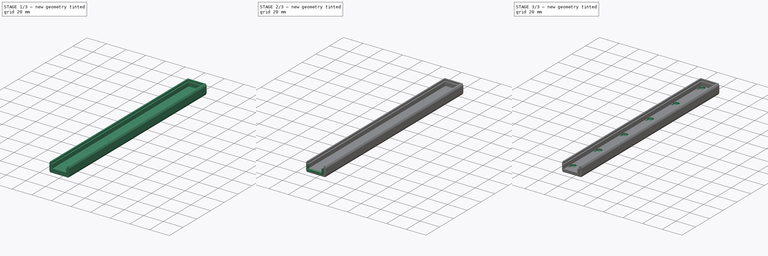
[diagram: build sequence overview — one tinted view per stage of 3, left to right]
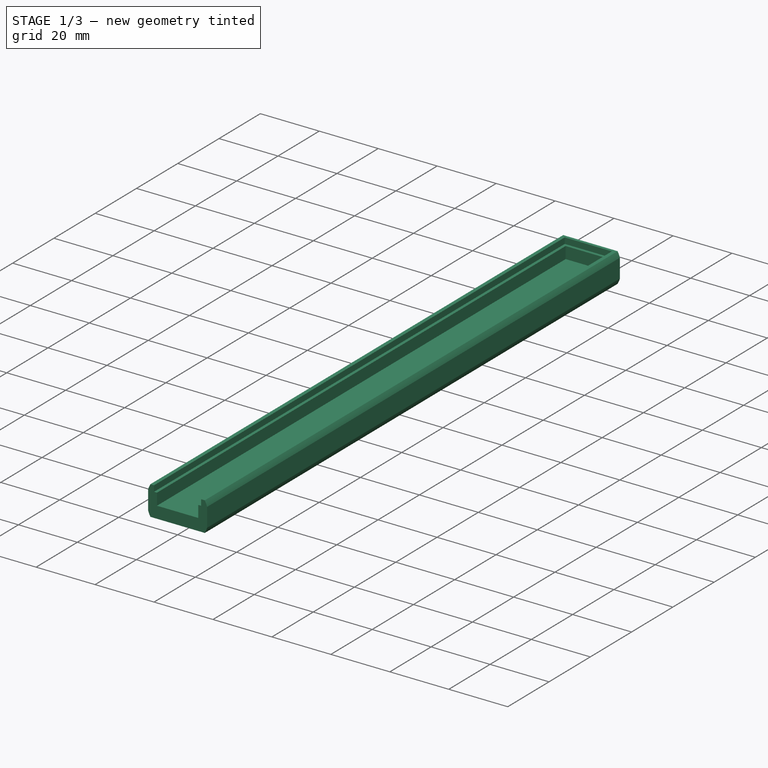
[diagram: stage 1 of 3 — iso view after this stage's code; geometry added in this stage tinted green]
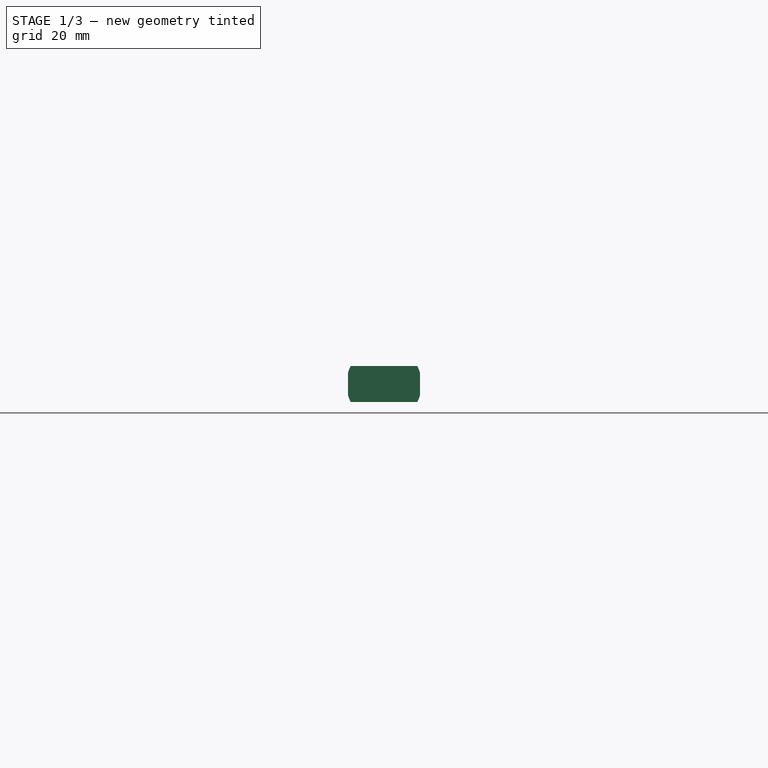
[diagram: stage 1 of 3 — front view after this stage's code; geometry added in this stage tinted green]
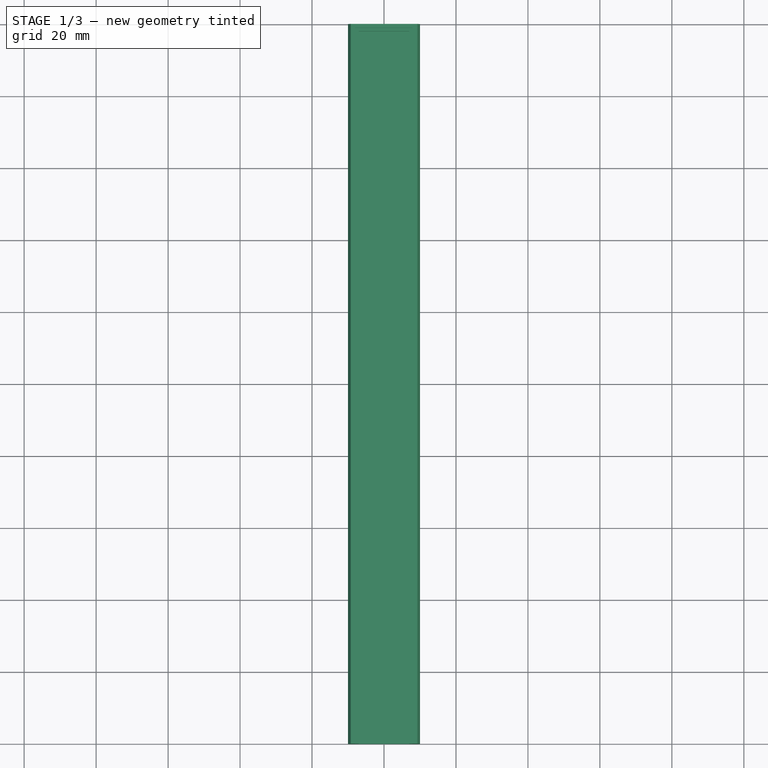
[diagram: stage 1 of 3 — top view after this stage's code; geometry added in this stage tinted green]
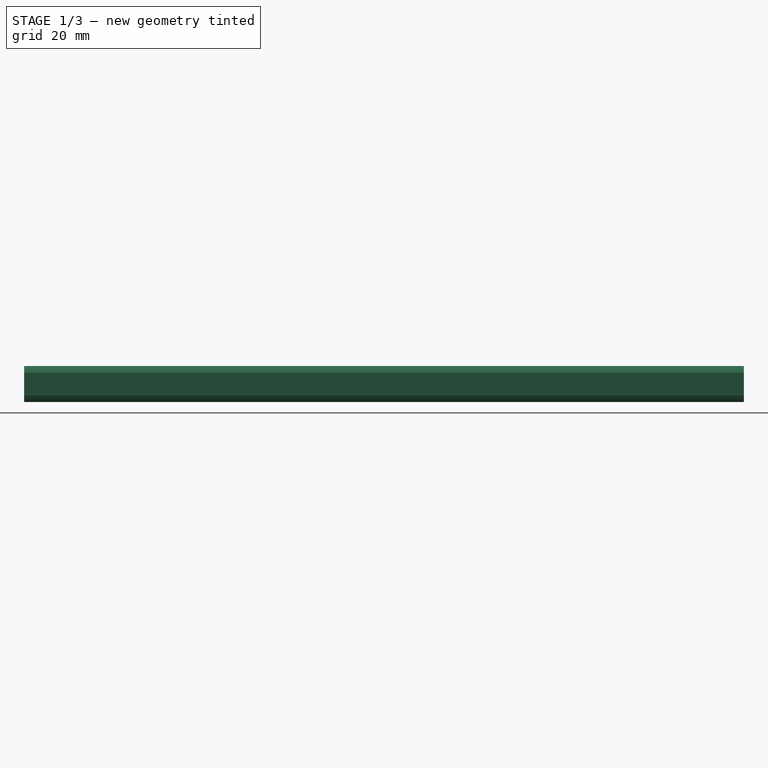
[diagram: stage 1 of 3 — right view after this stage's code; geometry added in this stage tinted green]
FCSTD DOCUMENT  (FreeCAD 0.19R24276 (Git))
Label: Probe_end_sop18_20_v2
License: All rights reserved
LicenseURL: http://en.wikipedia.org/wiki/All_rights_reserved
objects: Sketcher::SketchObject×7, PartDesign::Pocket×5, PartDesign::Pad×2, PartDesign::LinearPattern×1, PartDesign::Body×1
note: 23 computed .brp shape members not serialized (recipe doc carries the construction recipe); baked Part::Feature solids carry a one-line shape summary decoded from their .brp

FEATURE [Sketcher::SketchObject] Sketch
  FullyConstrained = true
  MapMode = 5
  Placement = pos=(0,0,0) rot=(1,0,0;1.5708rad)
  Support = -> [XZ_Plane]
  sketch-geometry (8):
    g0: ArcOfCircle CenterX=0 CenterY=0 CenterZ=0 NormalX=0 NormalY=0 NormalZ=1 AngleXU=0 Radius=10.5 StartAngle=2.64528 EndAngle=2.83175
    g1: LineSegment StartX=-9.23309 StartY=5 StartZ=0 EndX=9.23309 EndY=5 EndZ=0
    g2: LineSegment StartX=-9.23309 StartY=-5 StartZ=0 EndX=9.23309 EndY=-5 EndZ=0
    g3: LineSegment StartX=-10 StartY=3.20156 StartZ=0 EndX=-10 EndY=-3.20156 EndZ=0
    g4: LineSegment StartX=10 StartY=3.20156 StartZ=0 EndX=10 EndY=-3.20156 EndZ=0
    g5: ArcOfCircle CenterX=0 CenterY=0 CenterZ=0 NormalX=0 NormalY=0 NormalZ=1 AngleXU=0 Radius=10.5 StartAngle=3.45144 EndAngle=3.63791
    g6: ArcOfCircle CenterX=0 CenterY=0 CenterZ=0 NormalX=0 NormalY=0 NormalZ=1 AngleXU=0 Radius=10.5 StartAngle=0.309845 EndAngle=0.496317
    g7: ArcOfCircle CenterX=0 CenterY=0 CenterZ=0 NormalX=0 NormalY=0 NormalZ=1 AngleXU=0 Radius=10.5 StartAngle=5.78687 EndAngle=5.97334
  constraints (28):
    c: Coincident(g0,g-1)
    c: Radius(g0) = 10.5
    c: Horizontal(g1)
    c: PointOnObject(g2,g0)
    c: PointOnObject(g2,g0)
    c: Horizontal(g2)
    c: Vertical(g3)
    c: PointOnObject(g4,g0)
    c: PointOnObject(g4,g0)
    c: Vertical(g4)
    c: DistanceX(g3,g-1) = 10
    c: DistanceX(g-1,g4) = 10
    c: DistanceY(g-1,g1) = 5
    c: DistanceY(g2,g-1) = 5
    c: Coincident(g0,g1)
    c: Coincident(g6,g1)
    c: Equal(g0,g5)
    c: Coincident(g0,g3)
    c: Coincident(g5,g3)
    c: Coincident(g0,g5)
    c: Equal(g5,g6)
    c: PointOnObject(g7,g4)
    c: PointOnObject(g6,g4)
    c: Coincident(g5,g6)
    c: Equal(g5,g7)
    c: PointOnObject(g5,g2)
    c: PointOnObject(g7,g2)
    c: Coincident(g5,g7)
FEATURE [PartDesign::Pad] Pad
  Direction = (1,1,1)
  Length = 200
  Length2 = 100
  Placement = pos=(0,0,0) rot=(1,0,0;1.5708rad)
  Profile = -> Sketch
  Type = 0
FEATURE [Sketcher::SketchObject] Sketch001
  ExternalGeometry = -> [Pad]
  FullyConstrained = true
  MapMode = 5
  Placement = pos=(0,3.3e-15,5) rot=(0,0,1;3.14159rad)
  Support = -> [Pad]
  sketch-geometry (4):
    g0: LineSegment StartX=-8 StartY=200 StartZ=0 EndX=8 EndY=200 EndZ=0
    g1: LineSegment StartX=8 StartY=200 StartZ=0 EndX=8 EndY=1 EndZ=0
    g2: LineSegment StartX=8 StartY=1 StartZ=0 EndX=-8 EndY=1 EndZ=0
    g3: LineSegment StartX=-8 StartY=1 StartZ=0 EndX=-8 EndY=200 EndZ=0
  constraints (11):
    c: Coincident(g0,g1)
    c: Coincident(g1,g2)
    c: Coincident(g2,g3)
    c: Coincident(g3,g0)
    c: Horizontal(g2)
    c: Vertical(g1)
    c: Vertical(g3)
    c: PointOnObject(g0,g-3)
    c: DistanceY(g-1,g1) = 1
    c: Symmetric(g0,g0,g-2)
    c: DistanceX(g0,g0) = 16
FEATURE [PartDesign::Pocket] Pocket  label="Pocket_2mm"
  BaseFeature = -> Pad
  Length = 2
  Length2 = 100
  Placement = pos=(0,0,0) rot=(1,0,0;1.5708rad)
  Profile = -> Sketch001
  Type = 0
FEATURE [Sketcher::SketchObject] Sketch002
  ExternalGeometry = -> [Pocket]
  FullyConstrained = true
  MapMode = 5
  Placement = pos=(0,3.3e-15,3) rot=(0,0,1;3.14159rad)
  Support = -> [Pocket]
  sketch-geometry (4):
    g0: LineSegment StartX=-7 StartY=200 StartZ=0 EndX=7 EndY=200 EndZ=0
    g1: LineSegment StartX=7 StartY=200 StartZ=0 EndX=7 EndY=2 EndZ=0
    g2: LineSegment StartX=7 StartY=2 StartZ=0 EndX=-7 EndY=2 EndZ=0
    g3: LineSegment StartX=-7 StartY=2 StartZ=0 EndX=-7 EndY=200 EndZ=0
  constraints (11):
    c: Coincident(g0,g1)
    c: Coincident(g1,g2)
    c: Coincident(g2,g3)
    c: Coincident(g3,g0)
    c: Horizontal(g2)
    c: Vertical(g1)
    c: Vertical(g3)
    c: PointOnObject(g0,g-3)
    c: DistanceY(g-4,g1) = 1
    c: Symmetric(g0,g0,g-2)
    c: DistanceX(g0,g0) = 14
FEATURE [PartDesign::Pocket] Pocket001  label="Pocket_4mm"
  BaseFeature = -> Pocket
  Length = 4
  Length2 = 100
  Placement = pos=(0,0,0) rot=(1,0,0;1.5708rad)
  Profile = -> Sketch002
  Type = 0
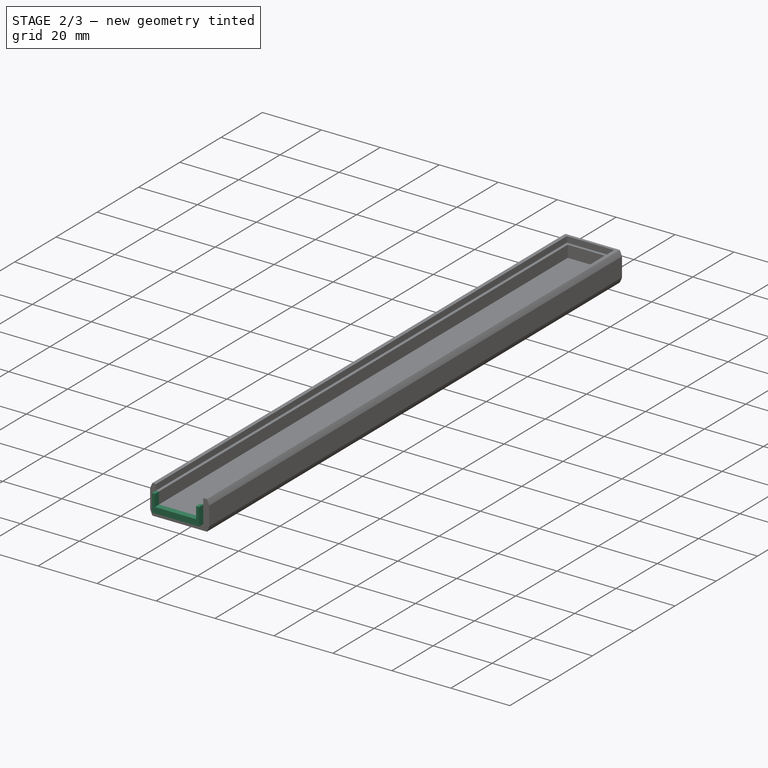
[diagram: stage 2 of 3 — iso view after this stage's code; geometry added in this stage tinted green]
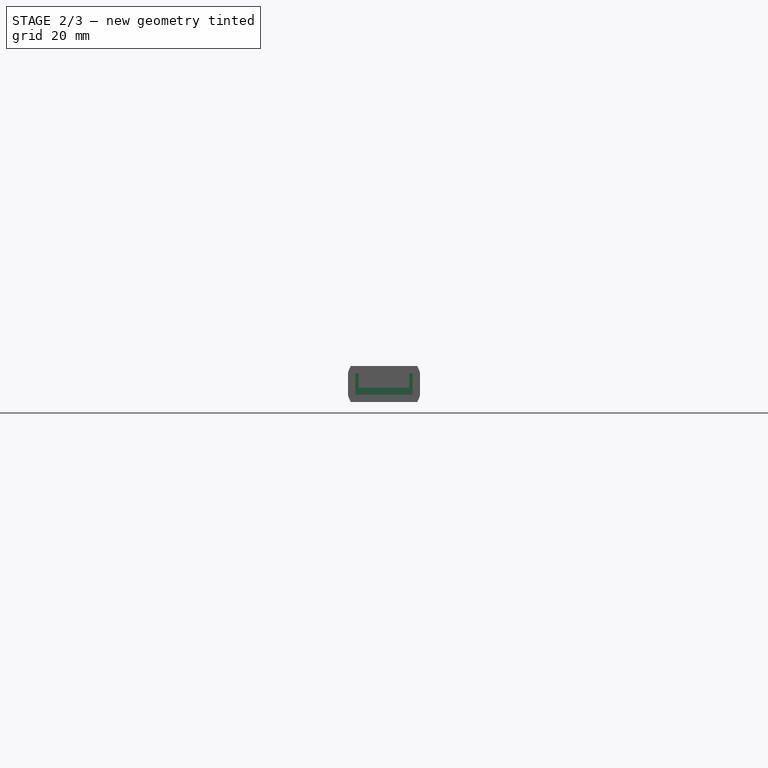
[diagram: stage 2 of 3 — front view after this stage's code; geometry added in this stage tinted green]
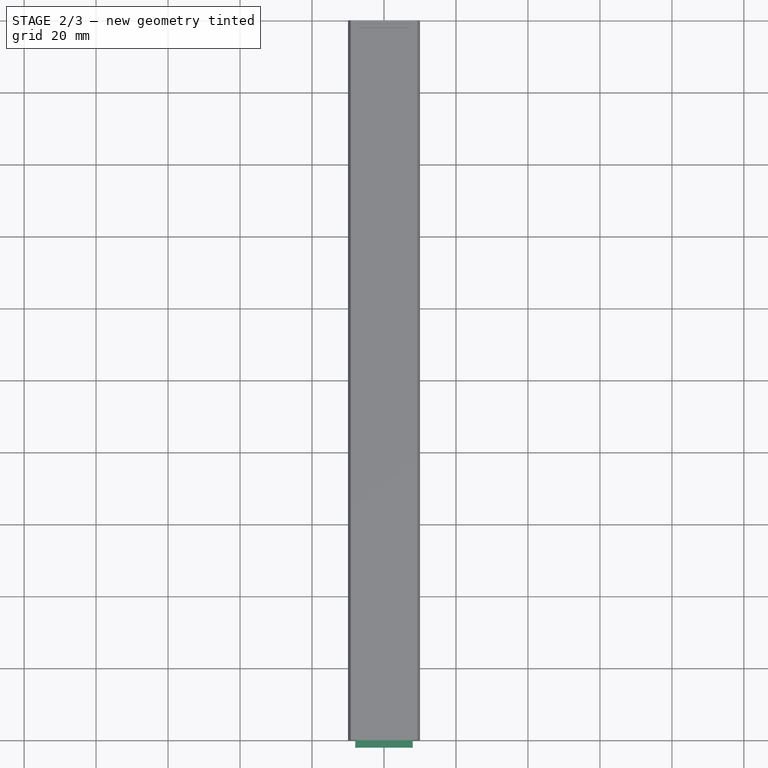
[diagram: stage 2 of 3 — top view after this stage's code; geometry added in this stage tinted green]
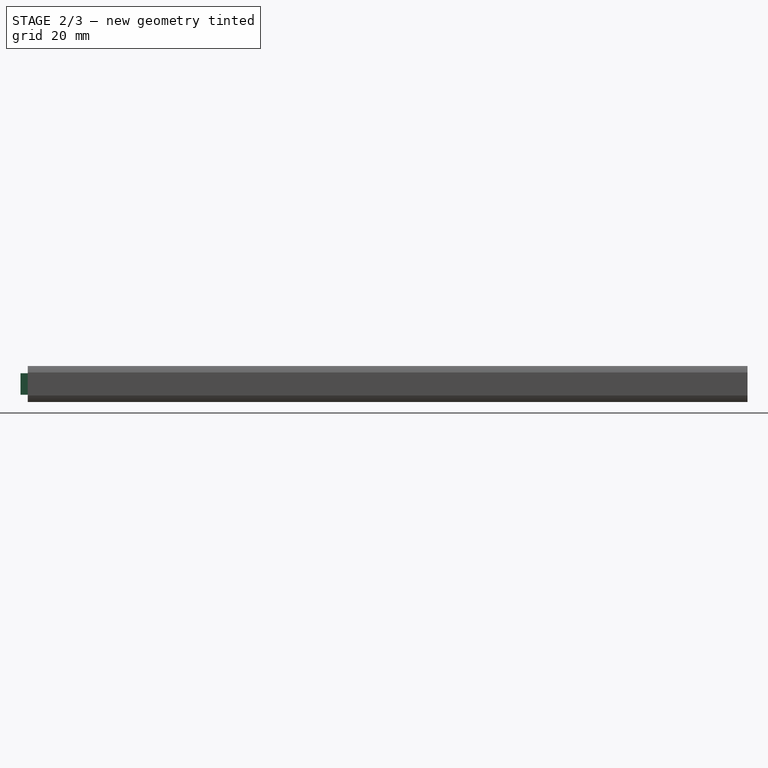
[diagram: stage 2 of 3 — right view after this stage's code; geometry added in this stage tinted green]
FEATURE [Sketcher::SketchObject] Sketch003
  ExternalGeometry = -> [Pocket001]
  FullyConstrained = true
  MapMode = 5
  Placement = pos=(0,-200,3.109e-13) rot=(1,0,0;1.5708rad)
  Support = -> [Pocket001]
  sketch-geometry (4):
    g0: LineSegment StartX=-8 StartY=3 StartZ=0 EndX=8 EndY=3 EndZ=0
    g1: LineSegment StartX=8 StartY=3 StartZ=0 EndX=8 EndY=-3 EndZ=0
    g2: LineSegment StartX=8 StartY=-3 StartZ=0 EndX=-8 EndY=-3 EndZ=0
    g3: LineSegment StartX=-8 StartY=-3 StartZ=0 EndX=-8 EndY=3 EndZ=0
  constraints (10):
    c: Coincident(g0,g1)
    c: Coincident(g1,g2)
    c: Coincident(g2,g3)
    c: Coincident(g3,g0)
    c: Horizontal(g2)
    c: Vertical(g1)
    c: Vertical(g3)
    c: Coincident(g0,g-3)
    c: Coincident(g0,g-4)
    c: DistanceY(g3,g3) = 6
FEATURE [PartDesign::Pad] Pad001  label="glue_2mm"
  BaseFeature = -> Pocket001
  Direction = (1,1,1)
  Length = 2
  Length2 = 100
  Placement = pos=(0,0,0) rot=(1,0,0;1.5708rad)
  Profile = -> Sketch003
  Type = 0
FEATURE [Sketcher::SketchObject] Sketch004
  ExternalGeometry = -> [Pad001]
  FullyConstrained = true
  MapMode = 5
  Placement = pos=(0,6.7e-15,3) rot=(0,0,1;3.14159rad)
  Support = -> [Pad001]
  sketch-geometry (4):
    g0: LineSegment StartX=-7 StartY=200 StartZ=0 EndX=7 EndY=200 EndZ=0
    g1: LineSegment StartX=7 StartY=200 StartZ=0 EndX=7 EndY=202 EndZ=0
    g2: LineSegment StartX=7 StartY=202 StartZ=0 EndX=-7 EndY=202 EndZ=0
    g3: LineSegment StartX=-7 StartY=202 StartZ=0 EndX=-7 EndY=200 EndZ=0
  constraints (10):
    c: Coincident(g0,g1)
    c: Coincident(g1,g2)
    c: Coincident(g2,g3)
    c: Coincident(g3,g0)
    c: Horizontal(g2)
    c: Vertical(g1)
    c: Vertical(g3)
    c: Coincident(g0,g-3)
    c: PointOnObject(g1,g-4)
    c: Coincident(g0,g-3)
FEATURE [PartDesign::Pocket] Pocket002  label="Pocket_glue_4mm"
  BaseFeature = -> Pad001
  Length = 4
  Length2 = 100
  Placement = pos=(0,0,0) rot=(1,0,0;1.5708rad)
  Profile = -> Sketch004
  Type = 0
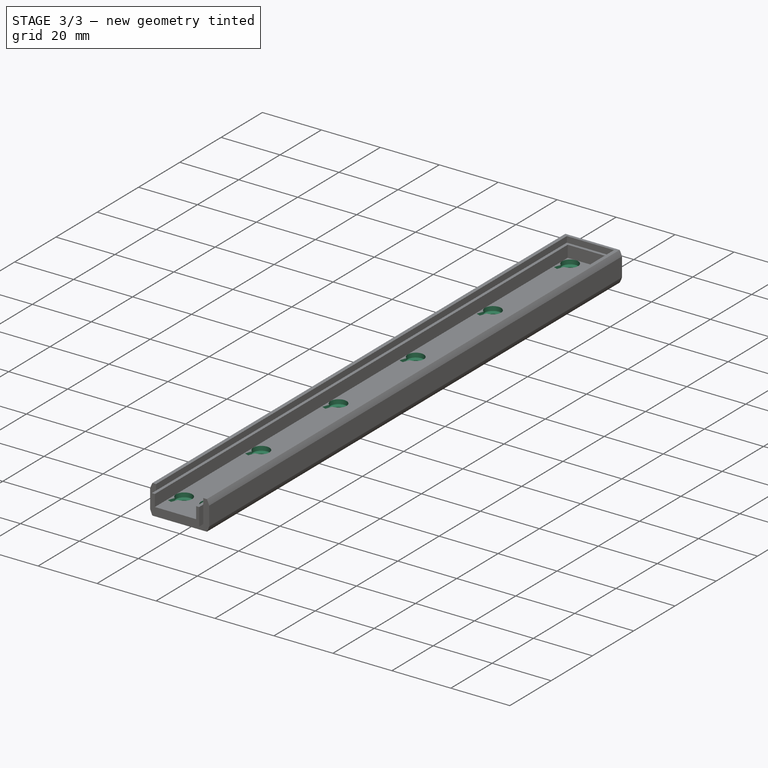
[diagram: stage 3 of 3 — iso view after this stage's code; geometry added in this stage tinted green]
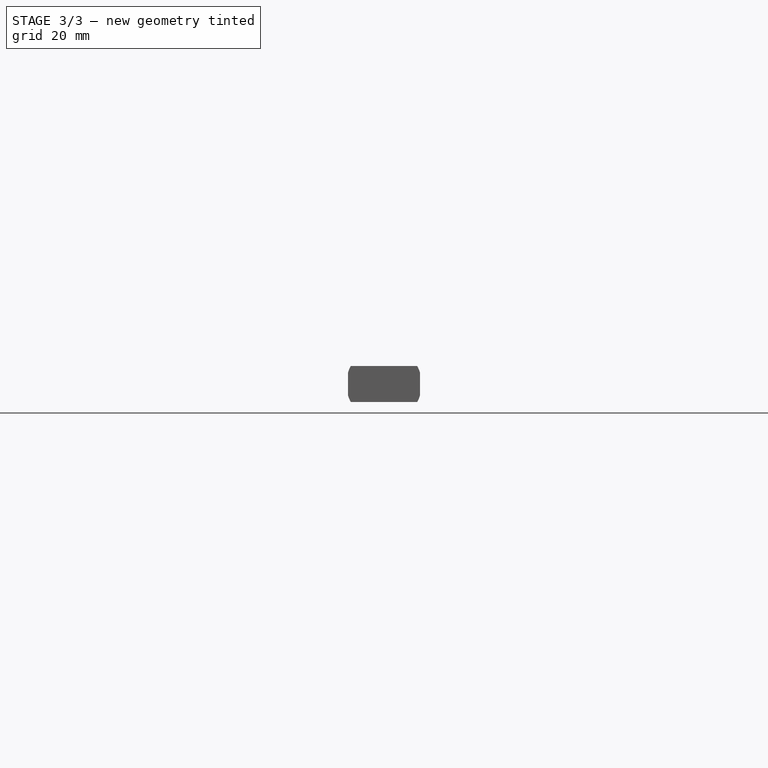
[diagram: stage 3 of 3 — front view after this stage's code; geometry added in this stage tinted green]
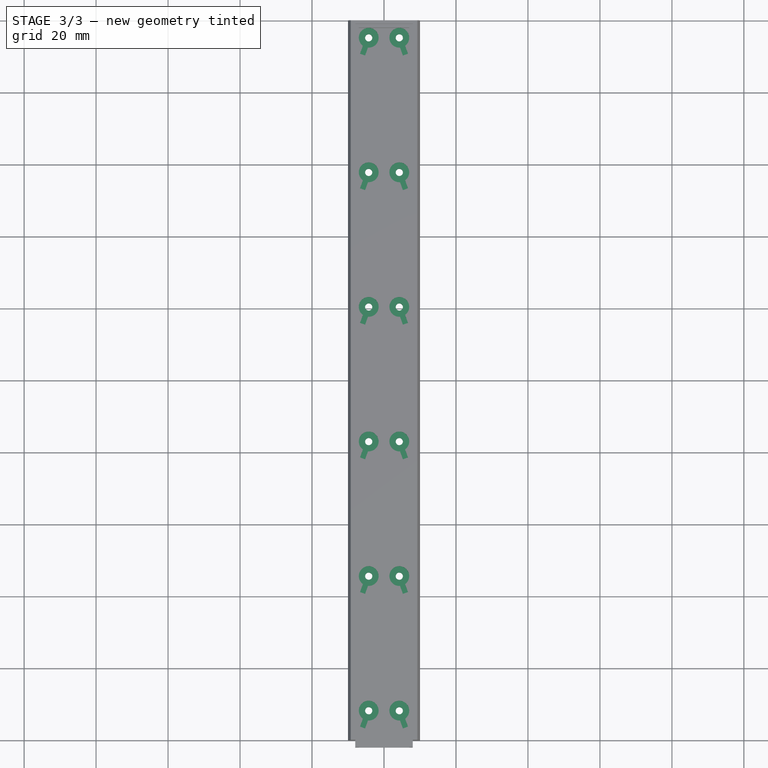
[diagram: stage 3 of 3 — top view after this stage's code; geometry added in this stage tinted green]
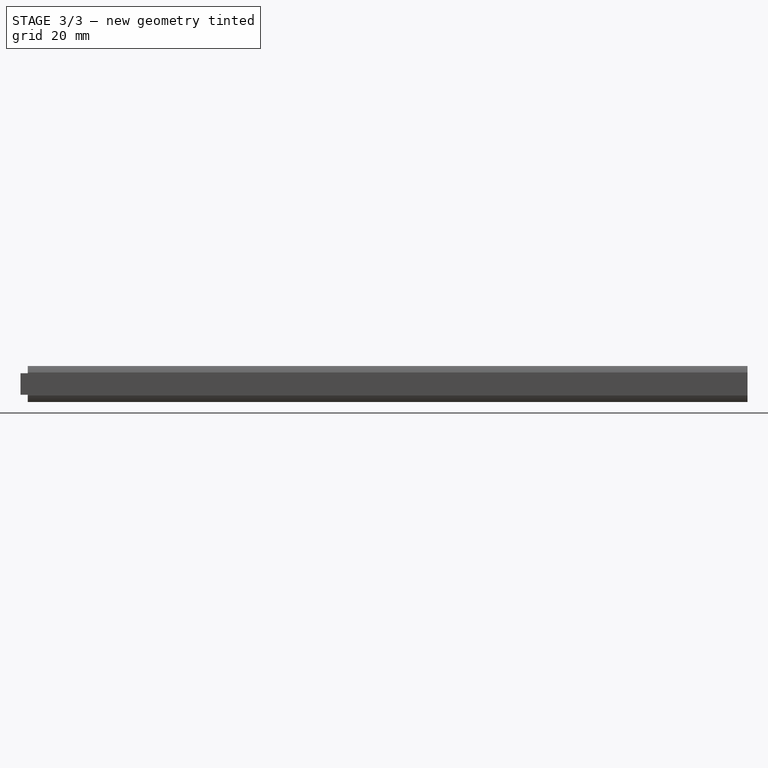
[diagram: stage 3 of 3 — right view after this stage's code; geometry added in this stage tinted green]
FEATURE [Sketcher::SketchObject] Sketch005
  ExternalGeometry = -> [Pocket002]
  FullyConstrained = true
  MapMode = 5
  Placement = pos=(0,-2.4e-15,-1) rot=(0,0,1;3.14159rad)
  Support = -> [Pocket002]
  sketch-geometry (11):
    g0: LineSegment StartX=-4.25 StartY=4.75 StartZ=0 EndX=4.25 EndY=4.75 EndZ=0
    g1: LineSegment StartX=-4.25 StartY=4.75 StartZ=0 EndX=-5.9601 EndY=9.44846 EndZ=0
    g2: LineSegment StartX=4.25 StartY=4.75 StartZ=0 EndX=5.9601 EndY=9.44846 EndZ=0
    g3: ArcOfCircle CenterX=-4.25 CenterY=4.75 CenterZ=0 NormalX=0 NormalY=0 NormalZ=1 AngleXU=0 Radius=2.75 StartAngle=2.19609 EndAngle=7.92682
    g4: ArcOfCircle CenterX=4.25 CenterY=4.75 CenterZ=0 NormalX=0 NormalY=0 NormalZ=1 AngleXU=0 Radius=2.75 StartAngle=1.49796 EndAngle=7.22869
    g5: LineSegment StartX=-5.85967 StartY=6.97968 StartZ=0 EndX=-6.66487 EndY=9.19195 EndZ=0
    g6: LineSegment StartX=-6.66487 StartY=9.19195 StartZ=0 EndX=-5.25533 EndY=9.70498 EndZ=0
    g7: LineSegment StartX=-5.25533 StartY=9.70498 StartZ=0 EndX=-4.45013 EndY=7.49271 EndZ=0
    g8: LineSegment StartX=4.45013 StartY=7.49271 StartZ=0 EndX=5.25533 EndY=9.70498 EndZ=0
    g9: LineSegment StartX=5.25533 StartY=9.70498 StartZ=0 EndX=6.66487 EndY=9.19195 EndZ=0
    g10: LineSegment StartX=6.66487 StartY=9.19195 StartZ=0 EndX=5.85967 EndY=6.97968 EndZ=0
  constraints (31):
    c: Coincident(g1,g0)
    c: Coincident(g2,g0)
    c: DistanceX(g0,g0) = 8.5
    c: Distance(g1) = 5
    c: Distance(g2) = 5
    c: Angle(g0,g1) = 1.91986
    c: Angle(g2,g0) = 1.91986
    c: Symmetric(g0,g0,g-2)
    c: DistanceY(g-3,g0) = 2.75
    c: Coincident(g3,g0)
    c: Radius(g3) = 2.75
    c: Equal(g3,g4)
    c: Coincident(g4,g0)
    c: Coincident(g5,g6)
    c: Coincident(g6,g7)
    c: Coincident(g8,g9)
    c: Coincident(g9,g10)
    c: Angle(g5,g6) = 1.5708
    c: Angle(g9,g10) = 1.5708
    c: Parallel(g1,g7)
    c: Parallel(g8,g2)
    c: Parallel(g2,g10)
    c: PointOnObject(g1,g6)
    c: Symmetric(g5,g6,g1)
    c: Symmetric(g8,g9,g2)
    c: Distance(g6) = 1.5
    c: Distance(g9) = 1.5
    c: Coincident(g3,g5)
    c: Coincident(g3,g7)
    c: Coincident(g4,g8)
    c: Coincident(g4,g10)
FEATURE [PartDesign::Pocket] Pocket003  label="Pocket_screwwire"
  BaseFeature = -> Pocket002
  Length = 1.5
  Length2 = 100
  Placement = pos=(0,0,0) rot=(1,0,0;1.5708rad)
  Profile = -> Sketch005
  Type = 0
FEATURE [Sketcher::SketchObject] Sketch006
  FullyConstrained = true
  MapMode = 5
  Placement = pos=(0,-7.2e-15,-2.5) rot=(0,0,1;3.14159rad)
  Support = -> [Pocket003]
  sketch-geometry (3):
    g0: LineSegment StartX=-4.25 StartY=4.75 StartZ=0 EndX=4.25 EndY=4.75 EndZ=0
    g1: Circle CenterX=-4.25 CenterY=4.75 CenterZ=0 NormalX=0 NormalY=0 NormalZ=1 AngleXU=0 Radius=1
    g2: Circle CenterX=4.25 CenterY=4.75 CenterZ=0 NormalX=0 NormalY=0 NormalZ=1 AngleXU=0 Radius=1
  constraints (7):
    c: DistanceX(g0,g0) = 8.5
    c: Symmetric(g0,g0,g-2)
    c: DistanceY(g-1,g0) = 4.75
    c: Coincident(g1,g0)
    c: Coincident(g2,g0)
    c: Radius(g1) = 1
    c: Equal(g1,g2)
FEATURE [PartDesign::Pocket] Pocket004  label="Pocket_screwwirehole"
  BaseFeature = -> Pocket003
  Length = 3
  Length2 = 100
  Placement = pos=(0,0,0) rot=(1,0,0;1.5708rad)
  Profile = -> Sketch006
  Type = 0
FEATURE [PartDesign::LinearPattern] LinearPattern
  BaseFeature = -> Pocket004
  Direction = -> Y_Axis
  Length = 187
  Occurrences = 6
  Originals = -> [Pocket003,Pocket004]
  Placement = pos=(0,0,0) rot=(1,0,0;1.5708rad)
  Reversed = true
FEATURE [PartDesign::Body] Body
  Group = -> [Sketch,Pad,Sketch001,Pocket,Sketch002,Pocket001,Sketch003,Pad001,Sketch004,Pocket002,Sketch005,Pocket003,Sketch006,Pocket004,LinearPattern]
  Origin = -> Origin
  Tip = -> LinearPattern
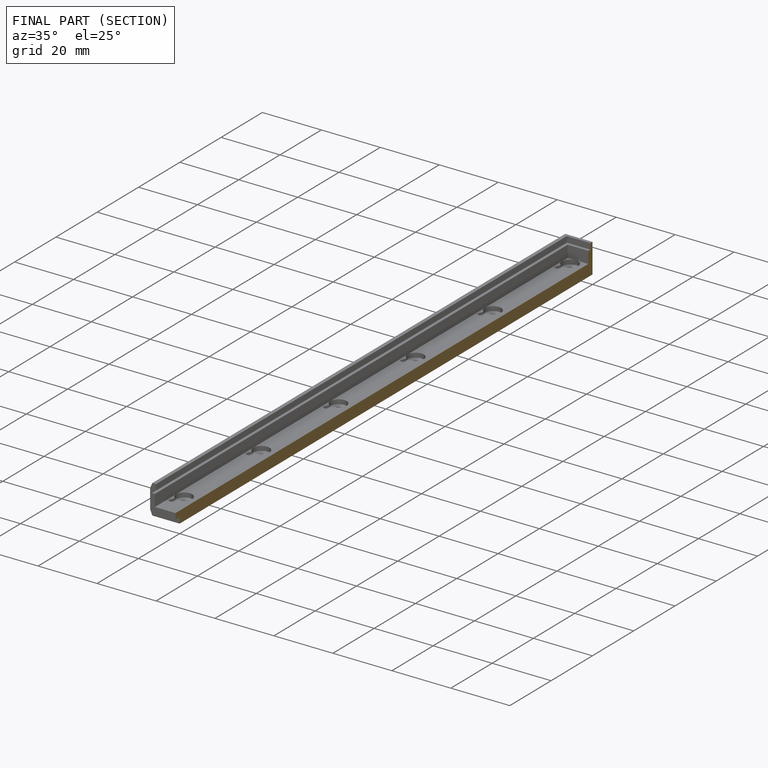
[diagram: finished part — half-section view (interior)]
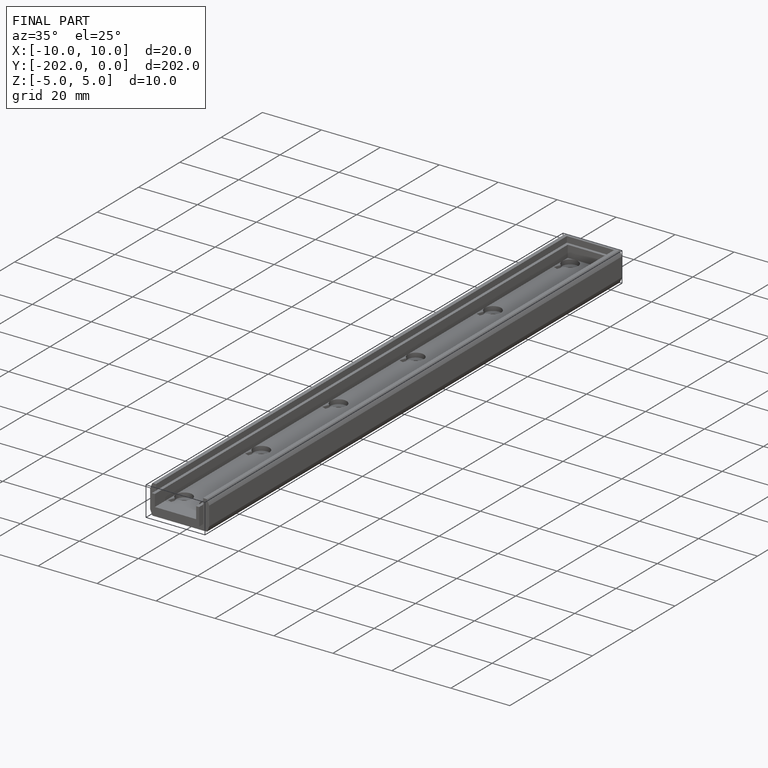
[diagram: finished part — iso view with bounding-box wireframe]
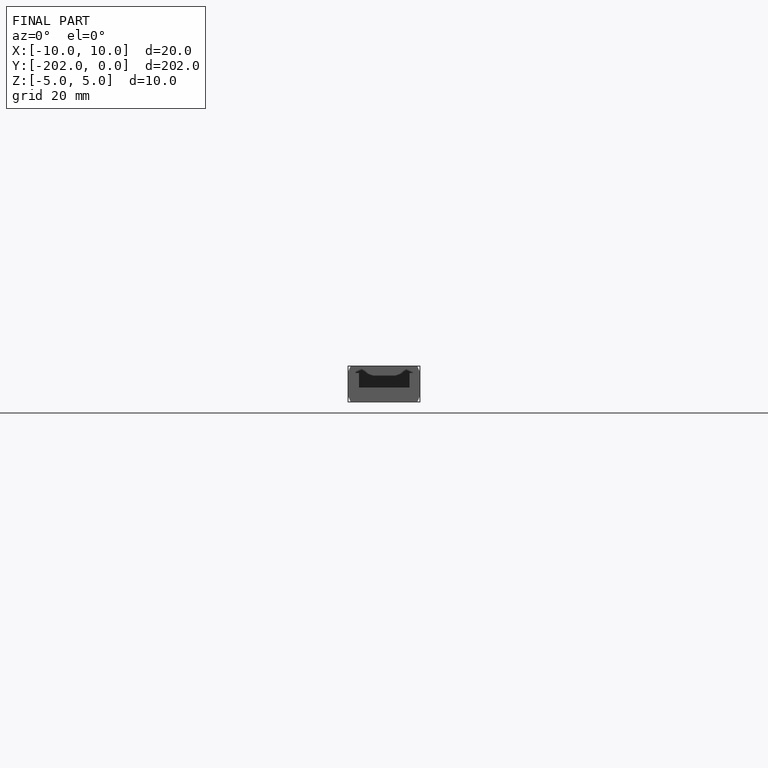
[diagram: finished part — front view with bounding-box wireframe]
